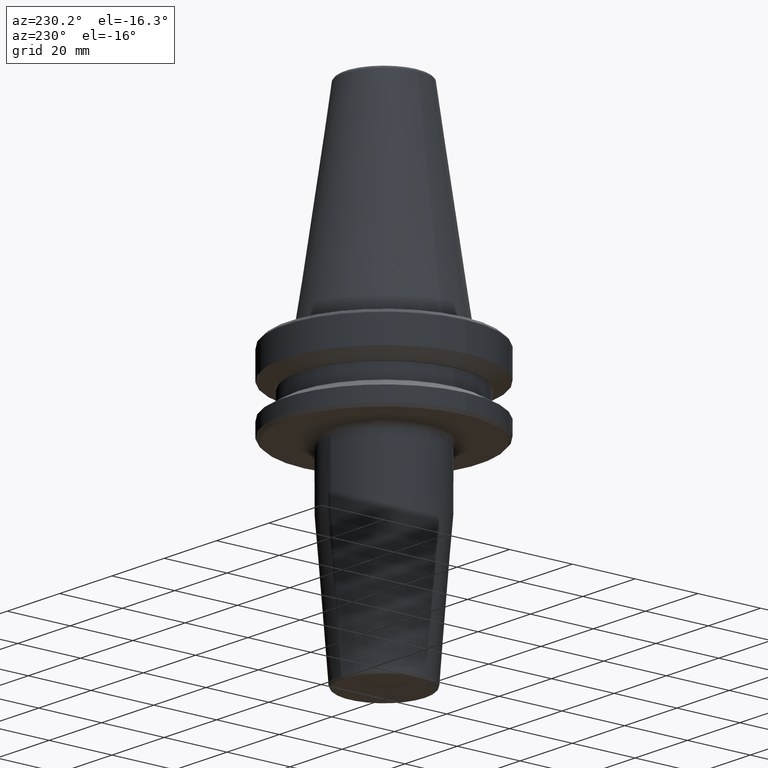
[diagram: clean part render]
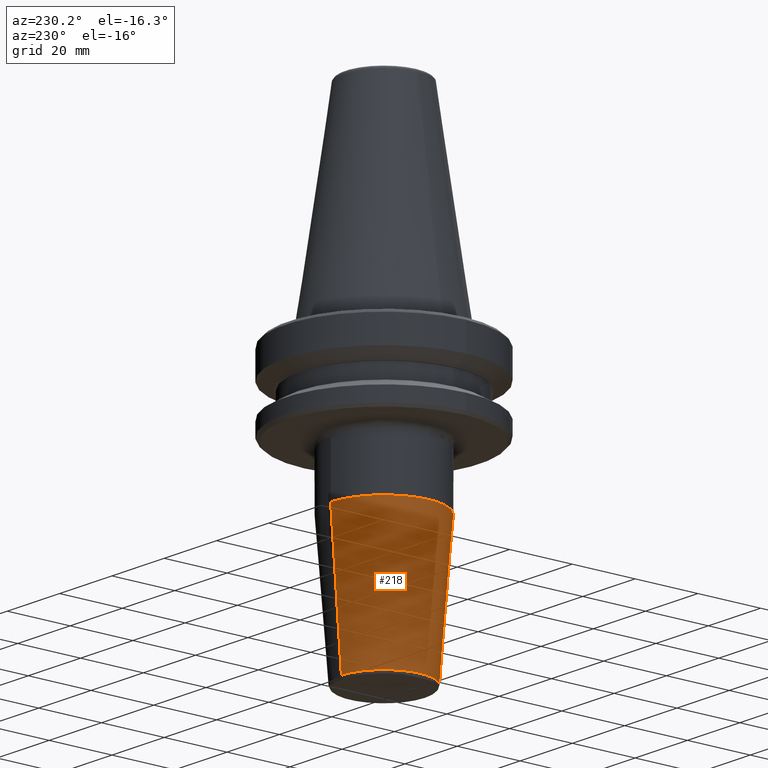
[diagram: same view with one face highlighted and labeled with its STEP entity id]
A machine part, auxiliary view. The second image highlights one B-rep face of the part: STEP entity #218.
In plain terms, the highlighted conical surface has half-angle 4.5 deg.
Its self-contained STEP definition (entity closure, byte-faithful):
#103 = VERTEX_POINT ( 'NONE', #1039 ) ;
#126 = LINE ( 'NONE', #694, #1123 ) ;
#163 = EDGE_CURVE ( 'NONE', #230, #1089, #1262, .T. ) ;
#215 = VECTOR ( 'NONE', #228, 1000.000000000000000 ) ;
#218 = ADVANCED_FACE ( 'NONE', ( #956 ), #674, .T. ) ;
#227 = CARTESIAN_POINT ( 'NONE',  ( 0.0000000000000000000, -13.57252684207490900, -89.07845909572782300 ) ) ;
#228 = DIRECTION ( 'NONE',  ( 0.0000000000000000000, -0.07845909572783783800, 0.9969173337331285200 ) ) ;
#230 = VERTEX_POINT ( 'NONE', #908 ) ;
#240 = AXIS2_PLACEMENT_3D ( 'NONE', #933, #1110, #1219 ) ;
#289 = EDGE_CURVE ( 'NONE', #103, #928, #126, .T. ) ;
#335 = ORIENTED_EDGE ( 'NONE', *, *, #1162, .T. ) ;
#352 = DIRECTION ( 'NONE',  ( 0.0000000000000000000, -1.000000000000000000, 0.0000000000000000000 ) ) ;
#379 = CARTESIAN_POINT ( 'NONE',  ( 2.081899558550500700E-015, 17.00000000000000000, -45.52828342338439400 ) ) ;
#425 = ORIENTED_EDGE ( 'NONE', *, *, #904, .F. ) ;
#435 = CIRCLE ( 'NONE', #1231, 17.00000000000000000 ) ;
#494 = CARTESIAN_POINT ( 'NONE',  ( 0.0000000000000000000, 4.322019616789088000E-016, -45.52828342338439400 ) ) ;
#581 = CARTESIAN_POINT ( 'NONE',  ( 0.0000000000000000000, -17.00000000000000000, -45.52828342338439400 ) ) ;
#639 = ORIENTED_EDGE ( 'NONE', *, *, #289, .F. ) ;
#674 = CONICAL_SURFACE ( 'NONE', #806, 13.57252684207491100, 0.07853981633973768100 ) ;
#684 = DIRECTION ( 'NONE',  ( -0.0000000000000000000, 2.332660569804487100E-017, -1.000000000000000000 ) ) ;
#694 = CARTESIAN_POINT ( 'NONE',  ( 1.662155155348857400E-015, 13.57252684207491300, -89.07845909572782300 ) ) ;
#792 = EDGE_LOOP ( 'NONE', ( #639, #425, #1222, #335 ) ) ;
#806 = AXIS2_PLACEMENT_3D ( 'NONE', #847, #882, #352 ) ;
#847 = CARTESIAN_POINT ( 'NONE',  ( 0.0000000000000000000, 1.448079737668250300E-015, -89.07845909572782300 ) ) ;
#877 = DIRECTION ( 'NONE',  ( 0.0000000000000000000, 1.000000000000000000, 0.0000000000000000000 ) ) ;
#882 = DIRECTION ( 'NONE',  ( 0.0000000000000000000, -2.332660569804487100E-017, 1.000000000000000000 ) ) ;
#888 = CIRCLE ( 'NONE', #240, 13.57252684207491100 ) ;
#904 = EDGE_CURVE ( 'NONE', #230, #103, #888, .T. ) ;
#908 = CARTESIAN_POINT ( 'NONE',  ( 1.662155155348857600E-015, -13.57252684207491100, -89.07845909572782300 ) ) ;
#928 = VERTEX_POINT ( 'NONE', #379 ) ;
#933 = CARTESIAN_POINT ( 'NONE',  ( 0.0000000000000000000, 1.448079737668250300E-015, -89.07845909572782300 ) ) ;
#956 = FACE_OUTER_BOUND ( 'NONE', #792, .T. ) ;
#981 = DIRECTION ( 'NONE',  ( 9.608468044709235300E-018, 0.07845909572783778300, 0.9969173337331285200 ) ) ;
#1039 = CARTESIAN_POINT ( 'NONE',  ( 0.0000000000000000000, 13.57252684207491500, -89.07845909572782300 ) ) ;
#1089 = VERTEX_POINT ( 'NONE', #581 ) ;
#1110 = DIRECTION ( 'NONE',  ( -0.0000000000000000000, 2.332660569804487100E-017, -1.000000000000000000 ) ) ;
#1123 = VECTOR ( 'NONE', #981, 1000.000000000000000 ) ;
#1162 = EDGE_CURVE ( 'NONE', #1089, #928, #435, .T. ) ;
#1219 = DIRECTION ( 'NONE',  ( 0.0000000000000000000, 1.000000000000000000, 0.0000000000000000000 ) ) ;
#1222 = ORIENTED_EDGE ( 'NONE', *, *, #163, .T. ) ;
#1231 = AXIS2_PLACEMENT_3D ( 'NONE', #494, #684, #877 ) ;
#1262 = LINE ( 'NONE', #227, #215 ) ;